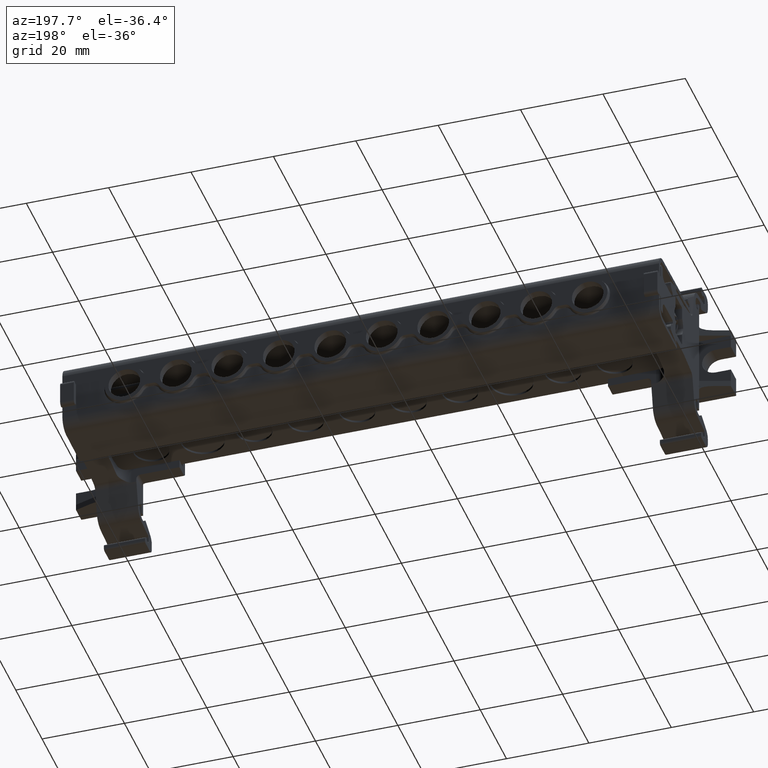
[diagram: clean part render]
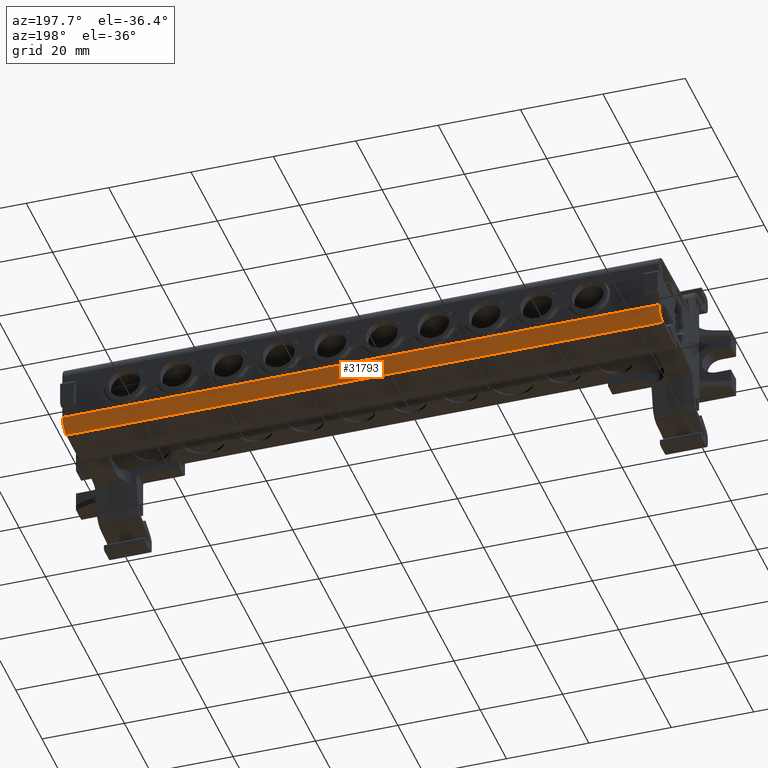
[diagram: same view with one face highlighted and labeled with its STEP entity id]
A machine part, auxiliary view. The second image highlights one B-rep face of the part: STEP entity #31793.
In plain terms, the highlighted cylindrical surface (edge-blend (fillet) strip) has radius 3 mm, axis along (-1, 0, 0).
Its self-contained STEP definition (entity closure, byte-faithful):
#5808 = EDGE_CURVE ( 'NONE', #17225, #11577, #14763, .T. ) ;
#5823 = EDGE_CURVE ( 'NONE', #11540, #17210, #14787, .T. ) ;
#6424 = EDGE_CURVE ( 'NONE', #17225, #17210, #14118, .T. ) ;
#9450 = VECTOR ( 'NONE', #26376, 1000.000000000000000 ) ;
#11540 = VERTEX_POINT ( 'NONE', #17974 ) ;
#11577 = VERTEX_POINT ( 'NONE', #18045 ) ;
#13741 = CARTESIAN_POINT ( 'NONE',  ( 12.64730230417513800, 74.21281927663100900, 32.27424828535645000 ) ) ;
#13757 = DIRECTION ( 'NONE',  ( -1.000000000000000000, 9.157181961203433600E-016, -5.592322756338657400E-022 ) ) ;
#14118 = LINE ( 'NONE', #13741, #14336 ) ;
#14336 = VECTOR ( 'NONE', #13757, 1000.000000000000000 ) ;
#14760 = AXIS2_PLACEMENT_3D ( 'NONE', #20147, #20134, #20130 ) ;
#14763 = CIRCLE ( 'NONE', #14760, 3.000000000000002700 ) ;
#14787 = CIRCLE ( 'NONE', #14793, 3.000000000000002700 ) ;
#14793 = AXIS2_PLACEMENT_3D ( 'NONE', #20265, #20290, #20292 ) ;
#15864 = EDGE_LOOP ( 'NONE', ( #19720, #19606, #19634, #19636 ) ) ;
#17019 = EDGE_CURVE ( 'NONE', #11577, #11540, #26374, .T. ) ;
#17210 = VERTEX_POINT ( 'NONE', #26797 ) ;
#17225 = VERTEX_POINT ( 'NONE', #26815 ) ;
#17974 = CARTESIAN_POINT ( 'NONE',  ( -99.84769769582482000, 71.26517592896098600, 29.27470702210132500 ) ) ;
#18045 = CARTESIAN_POINT ( 'NONE',  ( 44.99230230417513400, 71.26517592896087200, 29.27470702210095500 ) ) ;
#19606 = ORIENTED_EDGE ( 'NONE', *, *, #5823, .T. ) ;
#19634 = ORIENTED_EDGE ( 'NONE', *, *, #6424, .F. ) ;
#19636 = ORIENTED_EDGE ( 'NONE', *, *, #5808, .T. ) ;
#19720 = ORIENTED_EDGE ( 'NONE', *, *, #17019, .T. ) ;
#20130 = DIRECTION ( 'NONE',  ( 2.312964634635740700E-015, 0.0000000000000000000, 1.000000000000000000 ) ) ;
#20134 = DIRECTION ( 'NONE',  ( -1.000000000000000000, 9.157197356643954800E-016, 2.520934957069364000E-015 ) ) ;
#20147 = CARTESIAN_POINT ( 'NONE',  ( 44.99230230417514100, 71.21281927663154900, 32.27425011746673500 ) ) ;
#20265 = CARTESIAN_POINT ( 'NONE',  ( -99.84769769582480600, 71.21281927663167700, 32.27425011746710500 ) ) ;
#20290 = DIRECTION ( 'NONE',  ( 1.000000000000000000, -9.157197356643954800E-016, -2.520934957069364000E-015 ) ) ;
#20292 = DIRECTION ( 'NONE',  ( 4.625929269271481400E-015, 0.0000000000000000000, 1.000000000000000000 ) ) ;
#21348 = AXIS2_PLACEMENT_3D ( 'NONE', #28169, #28150, #28189 ) ;
#26374 = LINE ( 'NONE', #26375, #9450 ) ;
#26375 = CARTESIAN_POINT ( 'NONE',  ( 12.64730230417513600, 71.26517592896092900, 29.27470702210097600 ) ) ;
#26376 = DIRECTION ( 'NONE',  ( -1.000000000000000000, 9.157197356643954800E-016, 2.520934957069364000E-015 ) ) ;
#26797 = CARTESIAN_POINT ( 'NONE',  ( -99.84769769582483400, 74.21281927663110900, 32.27424828535657800 ) ) ;
#26815 = CARTESIAN_POINT ( 'NONE',  ( 44.99230230417515500, 74.21281927663098100, 32.27424828535640000 ) ) ;
#28150 = DIRECTION ( 'NONE',  ( -1.000000000000000000, 9.157197356643954800E-016, 2.520934957069364000E-015 ) ) ;
#28165 = CYLINDRICAL_SURFACE ( 'NONE', #21348, 3.000000000000002700 ) ;
#28169 = CARTESIAN_POINT ( 'NONE',  ( 12.64730230417514200, 71.21281927663157800, 32.27425011746682100 ) ) ;
#28189 = DIRECTION ( 'NONE',  ( 2.312964634635740700E-015, 0.0000000000000000000, 1.000000000000000000 ) ) ;
#28199 = FACE_OUTER_BOUND ( 'NONE', #15864, .T. ) ;
#31793 = ADVANCED_FACE ( 'NONE', ( #28199 ), #28165, .T. ) ;